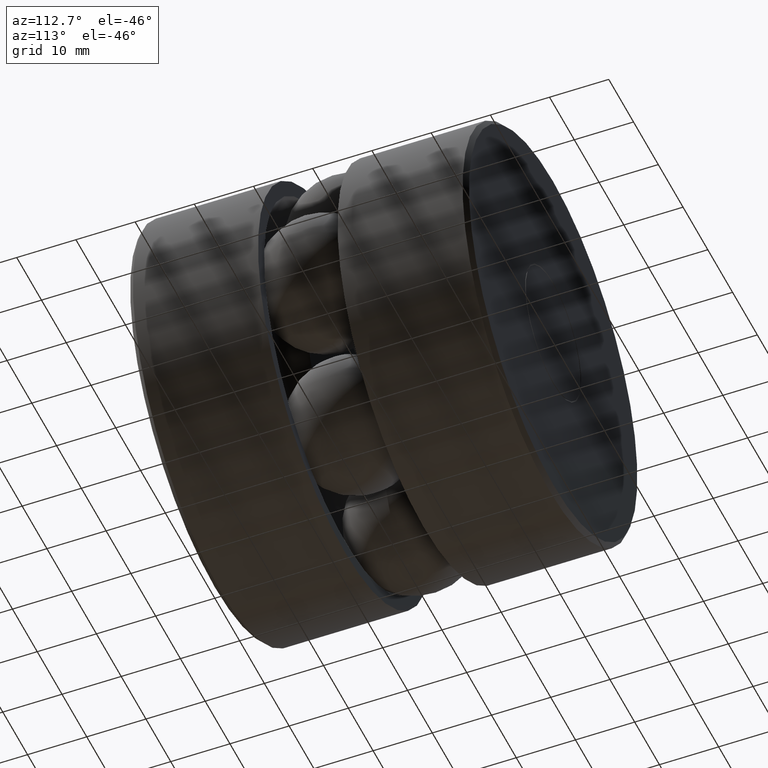
[diagram: clean part render]
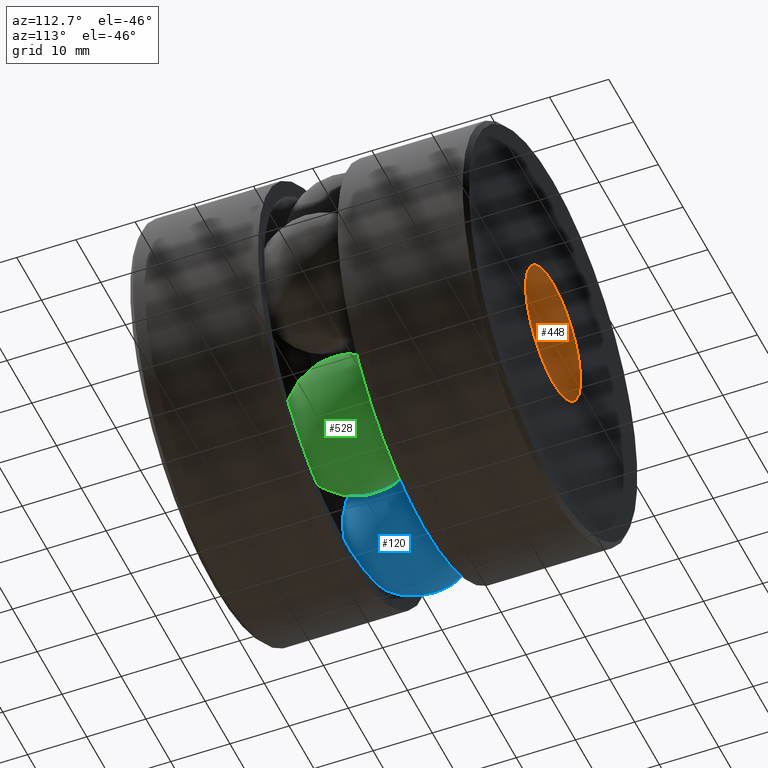
[diagram: same view with three faces highlighted in distinct colors, each labeled with its STEP entity id]
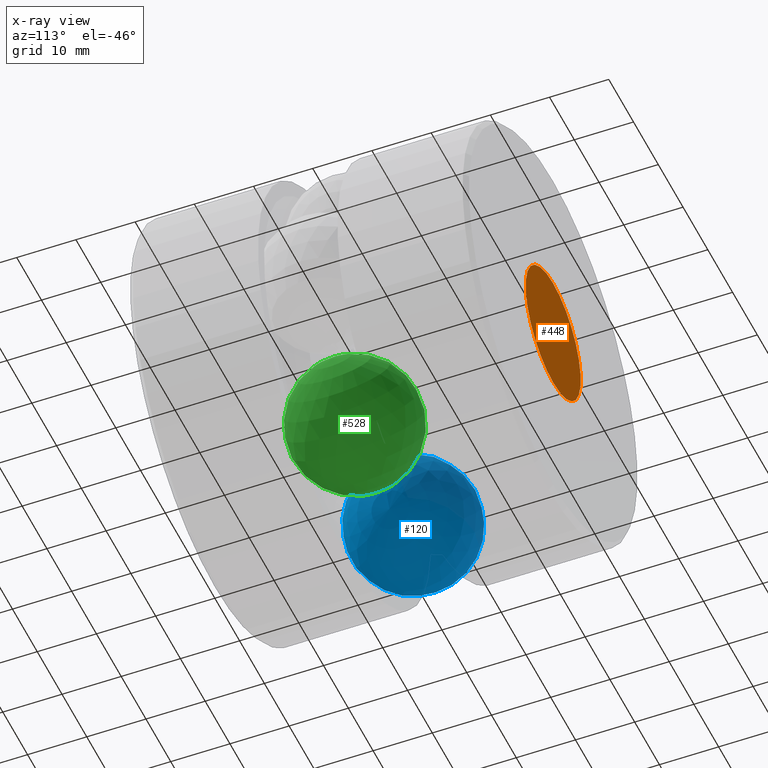
[diagram: x-ray of the same camera — body ghosted, the three highlighted faces saturated]
A machine part, auxiliary view with three faces highlighted in distinct colors.
The next image is the same camera in x-ray (body ghosted, the three faces saturated) — at least one of them is partly hidden behind the body in this view.
Their STEP definitions:

[orange] entity #448 — the highlighted planar face has unit normal (-0, 1, 0).
#21 = CIRCLE ( 'NONE', #377, 0.4372499999999976400 ) ;
#45 = CARTESIAN_POINT ( 'NONE',  ( 0.0000000000000000000, 2.250000000000000000, 0.4372499999999976400 ) ) ;
#51 = VERTEX_POINT ( 'NONE', #45 ) ;
#81 = DIRECTION ( 'NONE',  ( -0.0000000000000000000, 1.000000000000000000, -0.0000000000000000000 ) ) ;
#89 = EDGE_LOOP ( 'NONE', ( #346 ) ) ;
#141 = DIRECTION ( 'NONE',  ( 0.0000000000000000000, 0.0000000000000000000, 1.000000000000000000 ) ) ;
#160 = EDGE_CURVE ( 'NONE', #51, #51, #21, .T. ) ;
#236 = DIRECTION ( 'NONE',  ( -0.0000000000000000000, 1.000000000000000000, 0.0000000000000000000 ) ) ;
#237 = PLANE ( 'NONE',  #284 ) ;
#257 = CARTESIAN_POINT ( 'NONE',  ( 0.0000000000000000000, 2.250000000000000400, 0.0000000000000000000 ) ) ;
#284 = AXIS2_PLACEMENT_3D ( 'NONE', #257, #236, #141 ) ;
#333 = CARTESIAN_POINT ( 'NONE',  ( 0.0000000000000000000, 2.250000000000000000, 0.0000000000000000000 ) ) ;
#346 = ORIENTED_EDGE ( 'NONE', *, *, #160, .T. ) ;
#369 = DIRECTION ( 'NONE',  ( 0.0000000000000000000, 0.0000000000000000000, 1.000000000000000000 ) ) ;
#377 = AXIS2_PLACEMENT_3D ( 'NONE', #333, #81, #369 ) ;
#448 = ADVANCED_FACE ( 'NONE', ( #533 ), #237, .T. ) ;
#533 = FACE_OUTER_BOUND ( 'NONE', #89, .T. ) ;

[blue] entity #120 — the highlighted spherical surface has radius 11.1125 mm.
#40 = DIRECTION ( 'NONE',  ( 0.8660254037844328200, 0.0000000000000000000, -0.5000000000000101000 ) ) ;
#120 = ADVANCED_FACE ( 'NONE', ( ), #155, .T. ) ;
#155 = SPHERICAL_SURFACE ( 'NONE', #353, 0.4375000000000000600 ) ;
#199 = CARTESIAN_POINT ( 'NONE',  ( -0.4642500000000094900, 1.125000000000000000, -0.8041045874138460500 ) ) ;
#353 = AXIS2_PLACEMENT_3D ( 'NONE', #199, #40, #417 ) ;
#417 = DIRECTION ( 'NONE',  ( 0.5000000000000101000, 0.0000000000000000000, 0.8660254037844328200 ) ) ;

[green] entity #528 — the highlighted spherical surface has radius 11.1125 mm.
#2 = AXIS2_PLACEMENT_3D ( 'NONE', #42, #363, #229 ) ;
#42 = CARTESIAN_POINT ( 'NONE',  ( 0.4642499999999926700, 1.125000000000000000, -0.8041045874138557100 ) ) ;
#229 = DIRECTION ( 'NONE',  ( -0.4999999999999919500, 0.0000000000000000000, 0.8660254037844432600 ) ) ;
#363 = DIRECTION ( 'NONE',  ( 0.8660254037844432600, -0.0000000000000000000, 0.4999999999999919500 ) ) ;
#517 = SPHERICAL_SURFACE ( 'NONE', #2, 0.4375000000000000600 ) ;
#528 = ADVANCED_FACE ( 'NONE', ( ), #517, .T. ) ;